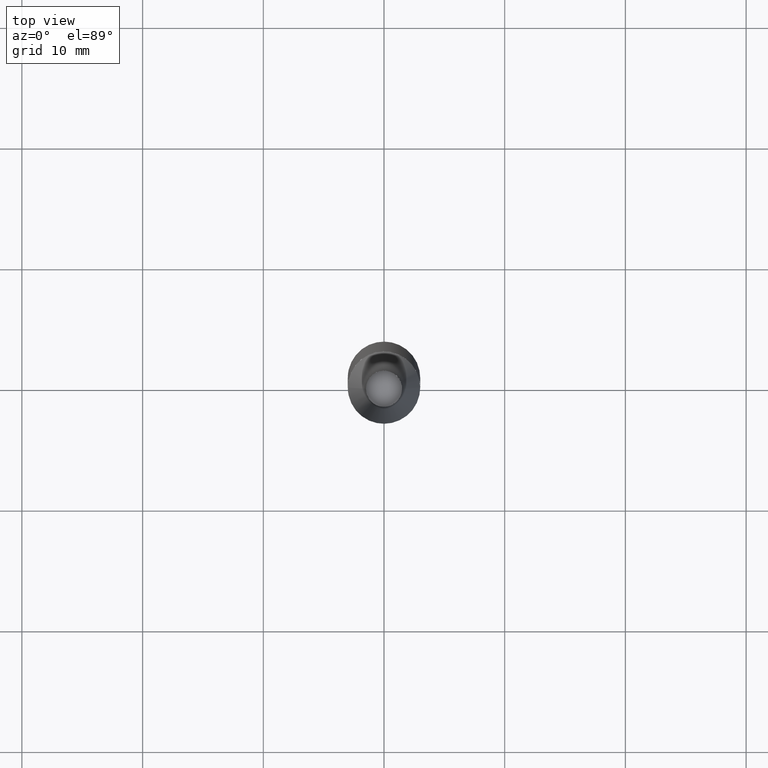
[diagram: clean part render]
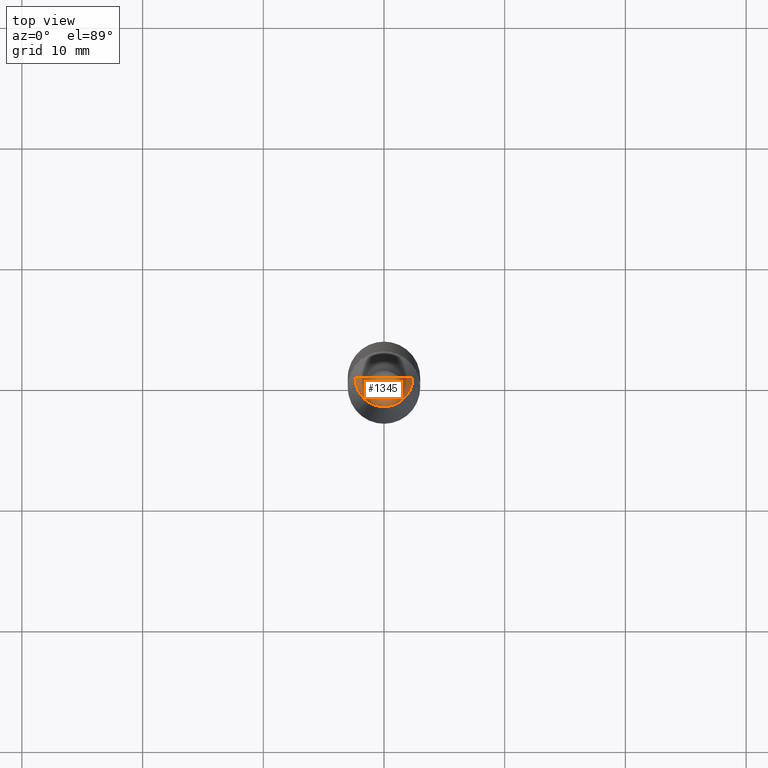
[diagram: same view with one face highlighted and labeled with its STEP entity id]
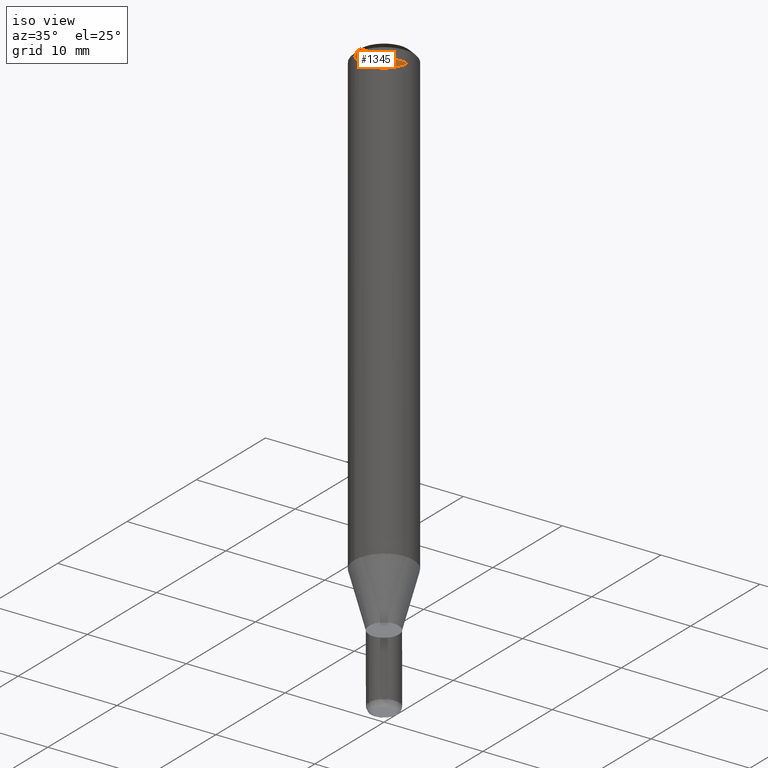
[diagram: same view with one face highlighted and labeled with its STEP entity id]
A machine part, top view. The second image highlights one B-rep face of the part: STEP entity #1345.
A second angle (iso view) of the same face is appended — the face is thin or edge-on in the first view.
In plain terms, the highlighted face is a freeform B-spline surface patch.
Its self-contained STEP definition (entity closure, byte-faithful):
#990=CARTESIAN_POINT('',(2.4,0.0,46.901923788647));
#994=CARTESIAN_POINT('',(-2.4,0.0,46.901923788647));
#995=CARTESIAN_POINT('',(0.0,0.0,46.901923788647));
#1002=CARTESIAN_POINT('',(-2.4,-2.4,46.901923788647));
#1003=CARTESIAN_POINT('',(0.0,-2.4,46.901923788647));
#1004=CARTESIAN_POINT('',(2.4,-2.4,46.901923788647));
#1330=(
BOUNDED_SURFACE()
B_SPLINE_SURFACE(1,2,(
(#994,#1002,#1003,#1004,#990),
(#995,#995,#995,#995,#995)
), .UNSPECIFIED.,.F.,.F.,.F.)
B_SPLINE_SURFACE_WITH_KNOTS((2,2),(3,2,3),(
0.0,1.0),(
0.0,0.5,1.0), .UNSPECIFIED.)
GEOMETRIC_REPRESENTATION_ITEM()
RATIONAL_B_SPLINE_SURFACE(((1.0,0.707106781187,1.0,0.707106781187,1.0),
(1.0,0.707106781187,1.0,0.707106781187,1.0)
))
REPRESENTATION_ITEM('')
SURFACE()
);
#1331=(
BOUNDED_CURVE()
B_SPLINE_CURVE(1,(#995,#990),.UNSPECIFIED.,.F.,.F.)
B_SPLINE_CURVE_WITH_KNOTS((2,2),
(0.0,1.0),.UNSPECIFIED.)
CURVE()
GEOMETRIC_REPRESENTATION_ITEM()
RATIONAL_B_SPLINE_CURVE((1.0,1.0))
REPRESENTATION_ITEM('')
);
#1332=(
BOUNDED_CURVE()
B_SPLINE_CURVE(2,(#990,#1004,#1003,#1002,#994),.UNSPECIFIED.,.F.,.F.)
B_SPLINE_CURVE_WITH_KNOTS((3,2,3),
(0.0,0.5,1.0),.UNSPECIFIED.)
CURVE()
GEOMETRIC_REPRESENTATION_ITEM()
RATIONAL_B_SPLINE_CURVE((1.0,0.707106781187,1.0,0.707106781187,1.0))
REPRESENTATION_ITEM('')
);
#1333=(
BOUNDED_CURVE()
B_SPLINE_CURVE(1,(#994,#995),.UNSPECIFIED.,.F.,.F.)
B_SPLINE_CURVE_WITH_KNOTS((2,2),
(0.0,1.0),.UNSPECIFIED.)
CURVE()
GEOMETRIC_REPRESENTATION_ITEM()
RATIONAL_B_SPLINE_CURVE((1.0,1.0))
REPRESENTATION_ITEM('')
);
#1334=VERTEX_POINT('',#990);
#1335=VERTEX_POINT('',#994);
#1336=VERTEX_POINT('',#995);
#1337=EDGE_CURVE('',#1336,#1334,#1331,.T.);
#1338=EDGE_CURVE('',#1334,#1335,#1332,.T.);
#1339=EDGE_CURVE('',#1335,#1336,#1333,.T.);
#1340=ORIENTED_EDGE('',*,*,#1337,.T.);
#1341=ORIENTED_EDGE('',*,*,#1338,.T.);
#1342=ORIENTED_EDGE('',*,*,#1339,.T.);
#1343=EDGE_LOOP('',(#1340,#1341,#1342));
#1344=FACE_OUTER_BOUND('',#1343,.T.);
#1345=ADVANCED_FACE('',(#1344),#1330,.T.);